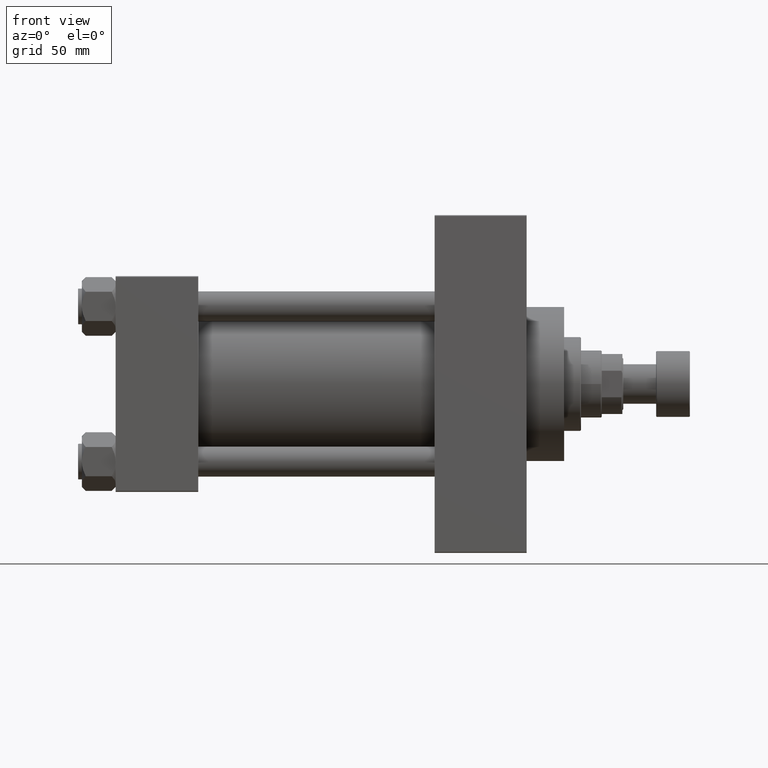
[diagram: clean part render]
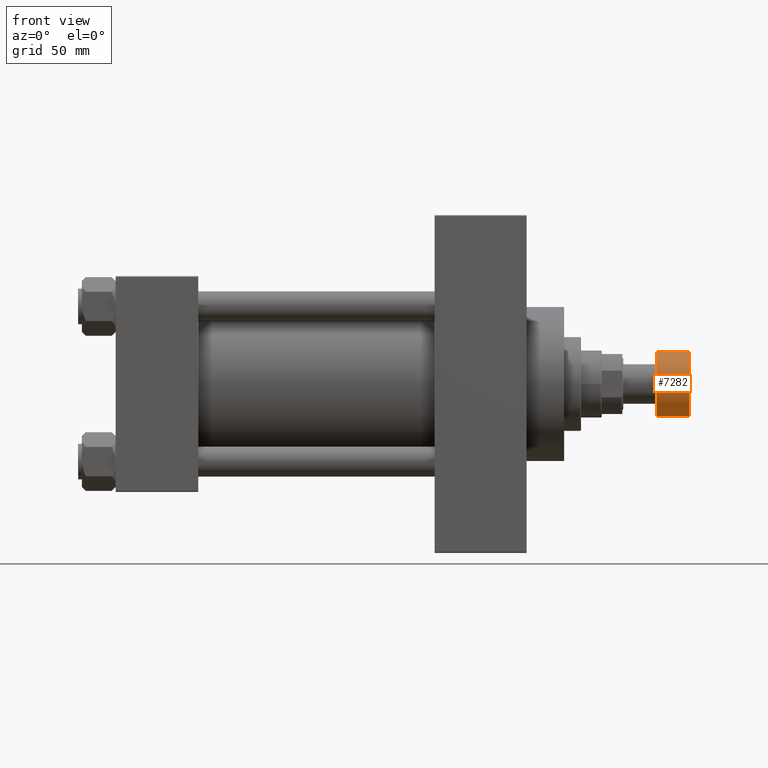
[diagram: same view with one face highlighted and labeled with its STEP entity id]
A machine part, front view. The second image highlights one B-rep face of the part: STEP entity #7282.
In plain terms, the highlighted cylindrical surface (edge-blend (fillet) strip) has radius 17.5 mm, axis along (1, 0, 0).
Its self-contained STEP definition (entity closure, byte-faithful):
#1489 = DIRECTION ( 'NONE',  ( 1.000000000000000000, 0.000000000000000000, 0.000000000000000000 ) ) ;
#1972 = DIRECTION ( 'NONE',  ( -0.000000000000000000, -0.000000000000000000, -1.000000000000000000 ) ) ;
#3478 = ORIENTED_EDGE ( 'NONE', *, *, #22037, .T. ) ;
#5039 = CARTESIAN_POINT ( 'NONE',  ( 17.50000000000000355, 0.000000000000000000, -18.00000000000000000 ) ) ;
#5283 = DIRECTION ( 'NONE',  ( 0.000000000000000000, 0.000000000000000000, 1.000000000000000000 ) ) ;
#7282 = ADVANCED_FACE ( 'NONE', ( #15131 ), #33643, .T. ) ;
#8210 = CARTESIAN_POINT ( 'NONE',  ( -17.50000000000000355, 2.143131898507868643E-15, -0.5000000000000004441 ) ) ;
#8219 = AXIS2_PLACEMENT_3D ( 'NONE', #26360, #41189, #33411 ) ;
#11092 = EDGE_CURVE ( 'NONE', #28526, #26731, #43299, .T. ) ;
#13383 = CARTESIAN_POINT ( 'NONE',  ( 0.000000000000000000, 0.000000000000000000, -17.49999999999999645 ) ) ;
#14001 = VECTOR ( 'NONE', #5283, 1000.000000000000000 ) ;
#14530 = VECTOR ( 'NONE', #25545, 1000.000000000000000 ) ;
#15131 = FACE_OUTER_BOUND ( 'NONE', #35997, .T. ) ;
#15650 = EDGE_CURVE ( 'NONE', #29695, #20815, #19266, .T. ) ;
#16562 = DIRECTION ( 'NONE',  ( 1.000000000000000000, 0.000000000000000000, 0.000000000000000000 ) ) ;
#17494 = CARTESIAN_POINT ( 'NONE',  ( -17.50000000000000355, 2.143131898507868643E-15, -18.00000000000000000 ) ) ;
#19266 = CIRCLE ( 'NONE', #26260, 17.50000000000000355 ) ;
#19379 = CARTESIAN_POINT ( 'NONE',  ( 17.50000000000000355, 0.000000000000000000, -0.5000000000000004441 ) ) ;
#20815 = VERTEX_POINT ( 'NONE', #8210 ) ;
#22037 = EDGE_CURVE ( 'NONE', #26731, #29695, #23559, .T. ) ;
#23559 = LINE ( 'NONE', #5039, #14001 ) ;
#25545 = DIRECTION ( 'NONE',  ( 0.000000000000000000, 0.000000000000000000, 1.000000000000000000 ) ) ;
#26260 = AXIS2_PLACEMENT_3D ( 'NONE', #34830, #1972, #1489 ) ;
#26360 = CARTESIAN_POINT ( 'NONE',  ( 0.000000000000000000, 0.000000000000000000, -18.00000000000000000 ) ) ;
#26731 = VERTEX_POINT ( 'NONE', #44652 ) ;
#28526 = VERTEX_POINT ( 'NONE', #36526 ) ;
#29366 = AXIS2_PLACEMENT_3D ( 'NONE', #13383, #38235, #16562 ) ;
#29695 = VERTEX_POINT ( 'NONE', #19379 ) ;
#33411 = DIRECTION ( 'NONE',  ( 1.000000000000000000, 0.000000000000000000, 0.000000000000000000 ) ) ;
#33643 = CYLINDRICAL_SURFACE ( 'NONE', #8219, 17.50000000000000355 ) ;
#34110 = ORIENTED_EDGE ( 'NONE', *, *, #11092, .T. ) ;
#34830 = CARTESIAN_POINT ( 'NONE',  ( 0.000000000000000000, 0.000000000000000000, -0.5000000000000004441 ) ) ;
#35997 = EDGE_LOOP ( 'NONE', ( #47456, #34110, #3478, #46474 ) ) ;
#36526 = CARTESIAN_POINT ( 'NONE',  ( -17.50000000000000355, 2.143131898507868643E-15, -17.49999999999999645 ) ) ;
#37857 = EDGE_CURVE ( 'NONE', #28526, #20815, #40122, .T. ) ;
#38235 = DIRECTION ( 'NONE',  ( 0.000000000000000000, 0.000000000000000000, 1.000000000000000000 ) ) ;
#40122 = LINE ( 'NONE', #17494, #14530 ) ;
#41189 = DIRECTION ( 'NONE',  ( 0.000000000000000000, 0.000000000000000000, 1.000000000000000000 ) ) ;
#43299 = CIRCLE ( 'NONE', #29366, 17.50000000000000355 ) ;
#44652 = CARTESIAN_POINT ( 'NONE',  ( 17.50000000000000355, 0.000000000000000000, -17.49999999999999645 ) ) ;
#46474 = ORIENTED_EDGE ( 'NONE', *, *, #15650, .T. ) ;
#47456 = ORIENTED_EDGE ( 'NONE', *, *, #37857, .F. ) ;